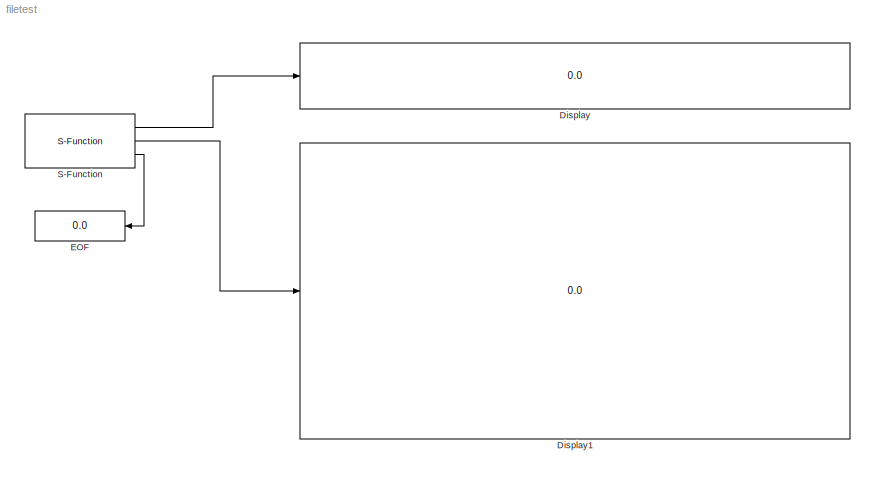
MODEL filetest
KIND model
BLOCK [Display] Display
  Decimation = 1
  Ports = [1]
  SID = 1
BLOCK [Display] Display1
  Decimation = 1
  Ports = [1]
  SID = 7
BLOCK [Display] EOF
  Decimation = 1
  Ports = [1]
  SID = 6
BLOCK [S-Function] S-Function
  EnableBusSupport = off
  FunctionName = readVinsData
  Parameters = 1
  Ports = [0, 3]
  SFcnIsStateOwnerBlock = off
  SFunctionDeploymentMode = off
  SID = 2
LINE S-Function:1 -> Display:1
LINE S-Function:2 -> Display1:1
LINE S-Function:3 -> EOF:1
